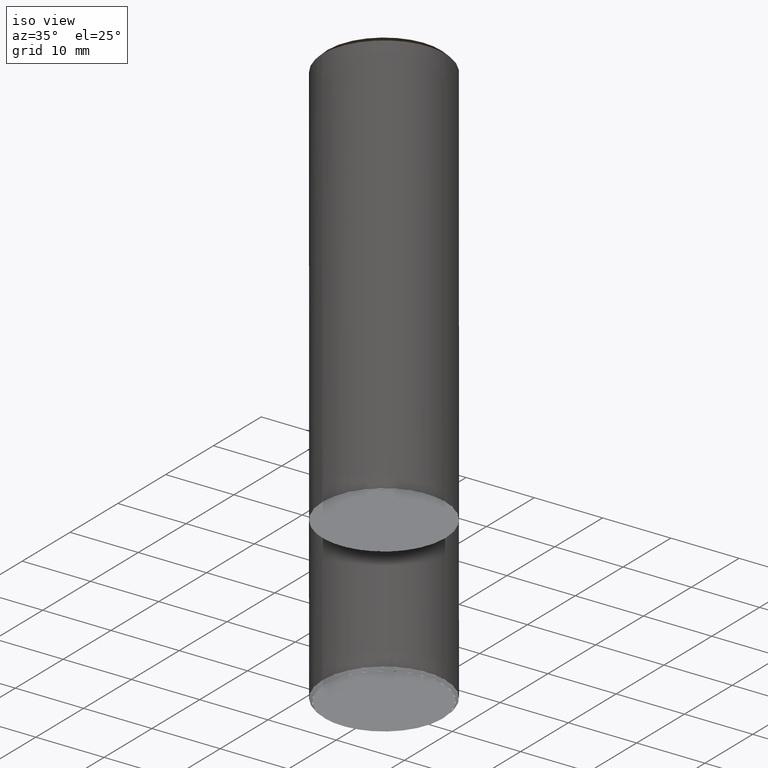
[diagram: clean part render]
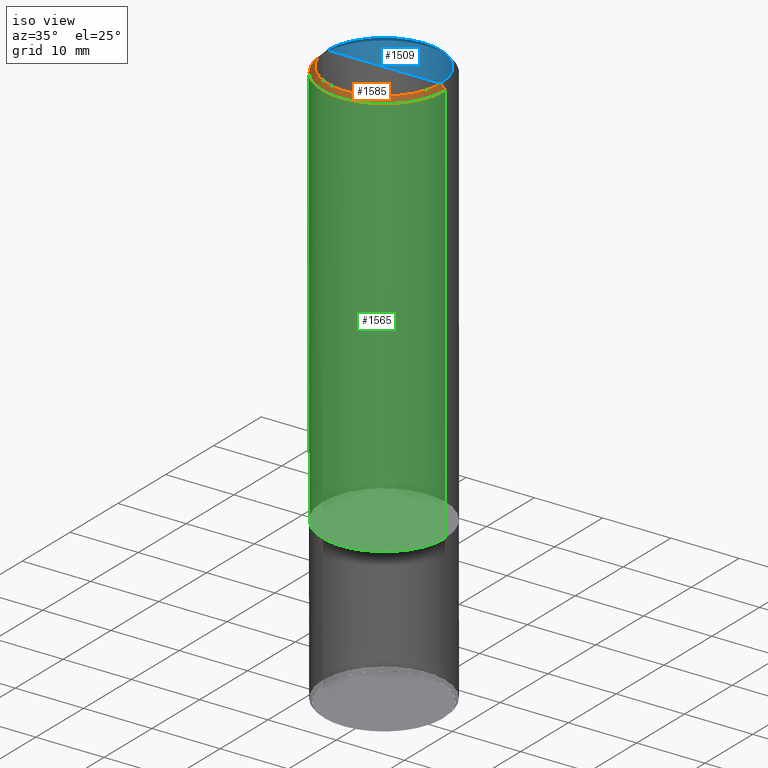
[diagram: same view with three faces highlighted in distinct colors, each labeled with its STEP entity id]
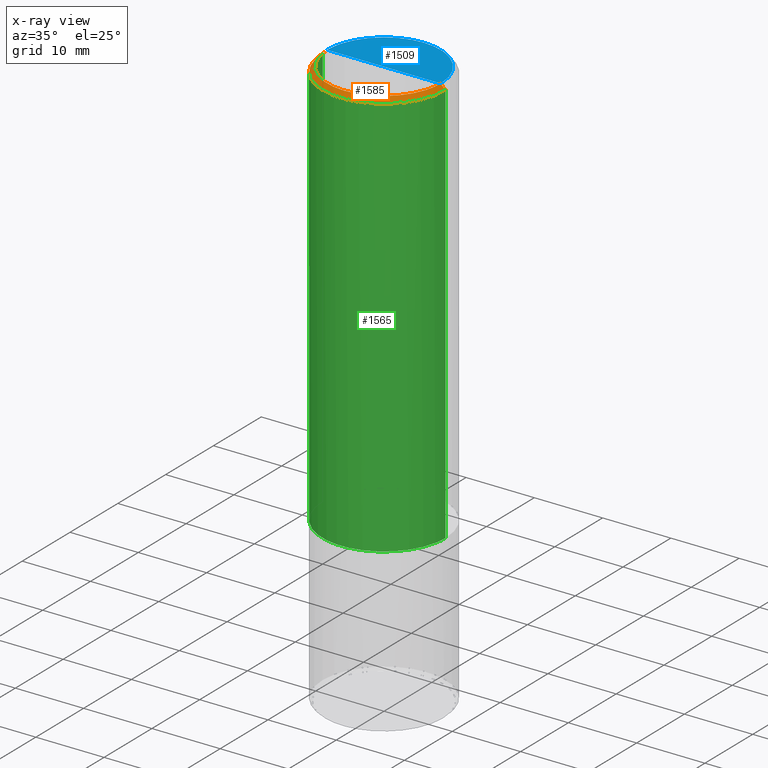
[diagram: x-ray of the same camera — body ghosted, the three highlighted faces saturated]
A machine part, iso view with three faces highlighted in distinct colors.
The next image is the same camera in x-ray (body ghosted, the three faces saturated) — at least one of them is partly hidden behind the body in this view.
Their STEP definitions:

[orange] entity #1585 — the highlighted face is a freeform B-spline surface patch.
#1243=CARTESIAN_POINT('',(9.0,0.0,59.299));
#1247=CARTESIAN_POINT('',(-9.0,0.0,59.299));
#1248=CARTESIAN_POINT('',(8.3,0.0,59.999));
#1252=CARTESIAN_POINT('',(-8.3,0.0,59.999));
#1257=CARTESIAN_POINT('',(-9.0,-9.0,59.299));
#1258=CARTESIAN_POINT('',(0.0,-9.0,59.299));
#1259=CARTESIAN_POINT('',(9.0,-9.0,59.299));
#1260=CARTESIAN_POINT('',(-8.3,-8.3,59.999));
#1261=CARTESIAN_POINT('',(0.0,-8.3,59.999));
#1262=CARTESIAN_POINT('',(8.3,-8.3,59.999));
#1566=(
BOUNDED_SURFACE()
B_SPLINE_SURFACE(1,2,(
(#1247,#1257,#1258,#1259,#1243),
(#1252,#1260,#1261,#1262,#1248)
), .UNSPECIFIED.,.F.,.F.,.F.)
B_SPLINE_SURFACE_WITH_KNOTS((2,2),(3,2,3),(
0.0,1.0),(
0.0,0.5,1.0), .UNSPECIFIED.)
GEOMETRIC_REPRESENTATION_ITEM()
RATIONAL_B_SPLINE_SURFACE(((1.0,0.707106781187,1.0,0.707106781187,1.0),
(1.0,0.707106781187,1.0,0.707106781187,1.0)
))
REPRESENTATION_ITEM('')
SURFACE()
);
#1567=(
BOUNDED_CURVE()
B_SPLINE_CURVE(2,(#1252,#1260,#1261,#1262,#1248),.UNSPECIFIED.,.F.,.F.)
B_SPLINE_CURVE_WITH_KNOTS((3,2,3),
(0.0,0.5,1.0),.UNSPECIFIED.)
CURVE()
GEOMETRIC_REPRESENTATION_ITEM()
RATIONAL_B_SPLINE_CURVE((1.0,0.707106781187,1.0,0.707106781187,1.0))
REPRESENTATION_ITEM('')
);
#1568=(
BOUNDED_CURVE()
B_SPLINE_CURVE(1,(#1248,#1243),.UNSPECIFIED.,.F.,.F.)
B_SPLINE_CURVE_WITH_KNOTS((2,2),
(0.0,1.0),.UNSPECIFIED.)
CURVE()
GEOMETRIC_REPRESENTATION_ITEM()
RATIONAL_B_SPLINE_CURVE((1.0,1.0))
REPRESENTATION_ITEM('')
);
#1569=(
BOUNDED_CURVE()
B_SPLINE_CURVE(2,(#1243,#1259,#1258,#1257,#1247),.UNSPECIFIED.,.F.,.F.)
B_SPLINE_CURVE_WITH_KNOTS((3,2,3),
(0.0,0.5,1.0),.UNSPECIFIED.)
CURVE()
GEOMETRIC_REPRESENTATION_ITEM()
RATIONAL_B_SPLINE_CURVE((1.0,0.707106781187,1.0,0.707106781187,1.0))
REPRESENTATION_ITEM('')
);
#1570=(
BOUNDED_CURVE()
B_SPLINE_CURVE(1,(#1247,#1252),.UNSPECIFIED.,.F.,.F.)
B_SPLINE_CURVE_WITH_KNOTS((2,2),
(0.0,1.0),.UNSPECIFIED.)
CURVE()
GEOMETRIC_REPRESENTATION_ITEM()
RATIONAL_B_SPLINE_CURVE((1.0,1.0))
REPRESENTATION_ITEM('')
);
#1571=VERTEX_POINT('',#1243);
#1572=VERTEX_POINT('',#1247);
#1573=VERTEX_POINT('',#1248);
#1574=VERTEX_POINT('',#1252);
#1575=EDGE_CURVE('',#1574,#1573,#1567,.T.);
#1576=EDGE_CURVE('',#1573,#1571,#1568,.T.);
#1577=EDGE_CURVE('',#1571,#1572,#1569,.T.);
#1578=EDGE_CURVE('',#1572,#1574,#1570,.T.);
#1579=ORIENTED_EDGE('',*,*,#1575,.T.);
#1580=ORIENTED_EDGE('',*,*,#1576,.T.);
#1581=ORIENTED_EDGE('',*,*,#1577,.T.);
#1582=ORIENTED_EDGE('',*,*,#1578,.T.);
#1583=EDGE_LOOP('',(#1579,#1580,#1581,#1582));
#1584=FACE_OUTER_BOUND('',#1583,.T.);
#1585=ADVANCED_FACE('',(#1584),#1566,.T.);

[blue] entity #1509 — the highlighted face is a freeform B-spline surface patch.
#1248=CARTESIAN_POINT('',(8.3,0.0,59.999));
#1249=CARTESIAN_POINT('',(8.3,8.3,59.999));
#1250=CARTESIAN_POINT('',(0.0,8.3,59.999));
#1251=CARTESIAN_POINT('',(-8.3,8.3,59.999));
#1252=CARTESIAN_POINT('',(-8.3,0.0,59.999));
#1253=CARTESIAN_POINT('',(0.0,0.0,59.999));
#1494=(
BOUNDED_SURFACE()
B_SPLINE_SURFACE(1,2,(
(#1248,#1249,#1250,#1251,#1252),
(#1253,#1253,#1253,#1253,#1253)
), .UNSPECIFIED.,.F.,.F.,.F.)
B_SPLINE_SURFACE_WITH_KNOTS((2,2),(3,2,3),(
0.0,1.0),(
0.0,0.5,1.0), .UNSPECIFIED.)
GEOMETRIC_REPRESENTATION_ITEM()
RATIONAL_B_SPLINE_SURFACE(((1.0,0.707106781187,1.0,0.707106781187,1.0),
(1.0,0.707106781187,1.0,0.707106781187,1.0)
))
REPRESENTATION_ITEM('')
SURFACE()
);
#1495=(
BOUNDED_CURVE()
B_SPLINE_CURVE(1,(#1253,#1248),.UNSPECIFIED.,.F.,.F.)
B_SPLINE_CURVE_WITH_KNOTS((2,2),
(0.0,1.0),.UNSPECIFIED.)
CURVE()
GEOMETRIC_REPRESENTATION_ITEM()
RATIONAL_B_SPLINE_CURVE((1.0,1.0))
REPRESENTATION_ITEM('')
);
#1496=(
BOUNDED_CURVE()
B_SPLINE_CURVE(2,(#1248,#1249,#1250,#1251,#1252),.UNSPECIFIED.,.F.,.F.)
B_SPLINE_CURVE_WITH_KNOTS((3,2,3),
(0.0,0.5,1.0),.UNSPECIFIED.)
CURVE()
GEOMETRIC_REPRESENTATION_ITEM()
RATIONAL_B_SPLINE_CURVE((1.0,0.707106781187,1.0,0.707106781187,1.0))
REPRESENTATION_ITEM('')
);
#1497=(
BOUNDED_CURVE()
B_SPLINE_CURVE(1,(#1252,#1253),.UNSPECIFIED.,.F.,.F.)
B_SPLINE_CURVE_WITH_KNOTS((2,2),
(0.0,1.0),.UNSPECIFIED.)
CURVE()
GEOMETRIC_REPRESENTATION_ITEM()
RATIONAL_B_SPLINE_CURVE((1.0,1.0))
REPRESENTATION_ITEM('')
);
#1498=VERTEX_POINT('',#1248);
#1499=VERTEX_POINT('',#1252);
#1500=VERTEX_POINT('',#1253);
#1501=EDGE_CURVE('',#1500,#1498,#1495,.T.);
#1502=EDGE_CURVE('',#1498,#1499,#1496,.T.);
#1503=EDGE_CURVE('',#1499,#1500,#1497,.T.);
#1504=ORIENTED_EDGE('',*,*,#1501,.T.);
#1505=ORIENTED_EDGE('',*,*,#1502,.T.);
#1506=ORIENTED_EDGE('',*,*,#1503,.T.);
#1507=EDGE_LOOP('',(#1504,#1505,#1506));
#1508=FACE_OUTER_BOUND('',#1507,.T.);
#1509=ADVANCED_FACE('',(#1508),#1494,.T.);

[green] entity #1565 — the highlighted face is a freeform B-spline surface patch.
#1238=CARTESIAN_POINT('',(9.0,0.0,-0.0));
#1242=CARTESIAN_POINT('',(-9.0,0.0,-0.0));
#1243=CARTESIAN_POINT('',(9.0,0.0,59.299));
#1247=CARTESIAN_POINT('',(-9.0,0.0,59.299));
#1254=CARTESIAN_POINT('',(-9.0,-9.0,-0.0));
#1255=CARTESIAN_POINT('',(0.0,-9.0,-0.0));
#1256=CARTESIAN_POINT('',(9.0,-9.0,-0.0));
#1257=CARTESIAN_POINT('',(-9.0,-9.0,59.299));
#1258=CARTESIAN_POINT('',(0.0,-9.0,59.299));
#1259=CARTESIAN_POINT('',(9.0,-9.0,59.299));
#1546=(
BOUNDED_SURFACE()
B_SPLINE_SURFACE(1,2,(
(#1242,#1254,#1255,#1256,#1238),
(#1247,#1257,#1258,#1259,#1243)
), .UNSPECIFIED.,.F.,.F.,.F.)
B_SPLINE_SURFACE_WITH_KNOTS((2,2),(3,2,3),(
0.0,1.0),(
0.0,0.5,1.0), .UNSPECIFIED.)
GEOMETRIC_REPRESENTATION_ITEM()
RATIONAL_B_SPLINE_SURFACE(((1.0,0.707106781187,1.0,0.707106781187,1.0),
(1.0,0.707106781187,1.0,0.707106781187,1.0)
))
REPRESENTATION_ITEM('')
SURFACE()
);
#1547=(
BOUNDED_CURVE()
B_SPLINE_CURVE(1,(#1247,#1242),.UNSPECIFIED.,.F.,.F.)
B_SPLINE_CURVE_WITH_KNOTS((2,2),
(0.0,1.0),.UNSPECIFIED.)
CURVE()
GEOMETRIC_REPRESENTATION_ITEM()
RATIONAL_B_SPLINE_CURVE((1.0,1.0))
REPRESENTATION_ITEM('')
);
#1548=(
BOUNDED_CURVE()
B_SPLINE_CURVE(2,(#1242,#1254,#1255,#1256,#1238),.UNSPECIFIED.,.F.,.F.)
B_SPLINE_CURVE_WITH_KNOTS((3,2,3),
(0.0,0.5,1.0),.UNSPECIFIED.)
CURVE()
GEOMETRIC_REPRESENTATION_ITEM()
RATIONAL_B_SPLINE_CURVE((1.0,0.707106781187,1.0,0.707106781187,1.0))
REPRESENTATION_ITEM('')
);
#1549=(
BOUNDED_CURVE()
B_SPLINE_CURVE(1,(#1238,#1243),.UNSPECIFIED.,.F.,.F.)
B_SPLINE_CURVE_WITH_KNOTS((2,2),
(0.0,1.0),.UNSPECIFIED.)
CURVE()
GEOMETRIC_REPRESENTATION_ITEM()
RATIONAL_B_SPLINE_CURVE((1.0,1.0))
REPRESENTATION_ITEM('')
);
#1550=(
BOUNDED_CURVE()
B_SPLINE_CURVE(2,(#1243,#1259,#1258,#1257,#1247),.UNSPECIFIED.,.F.,.F.)
B_SPLINE_CURVE_WITH_KNOTS((3,2,3),
(0.0,0.5,1.0),.UNSPECIFIED.)
CURVE()
GEOMETRIC_REPRESENTATION_ITEM()
RATIONAL_B_SPLINE_CURVE((1.0,0.707106781187,1.0,0.707106781187,1.0))
REPRESENTATION_ITEM('')
);
#1551=VERTEX_POINT('',#1238);
#1552=VERTEX_POINT('',#1242);
#1553=VERTEX_POINT('',#1243);
#1554=VERTEX_POINT('',#1247);
#1555=EDGE_CURVE('',#1554,#1552,#1547,.T.);
#1556=EDGE_CURVE('',#1552,#1551,#1548,.T.);
#1557=EDGE_CURVE('',#1551,#1553,#1549,.T.);
#1558=EDGE_CURVE('',#1553,#1554,#1550,.T.);
#1559=ORIENTED_EDGE('',*,*,#1555,.T.);
#1560=ORIENTED_EDGE('',*,*,#1556,.T.);
#1561=ORIENTED_EDGE('',*,*,#1557,.T.);
#1562=ORIENTED_EDGE('',*,*,#1558,.T.);
#1563=EDGE_LOOP('',(#1559,#1560,#1561,#1562));
#1564=FACE_OUTER_BOUND('',#1563,.T.);
#1565=ADVANCED_FACE('',(#1564),#1546,.T.);